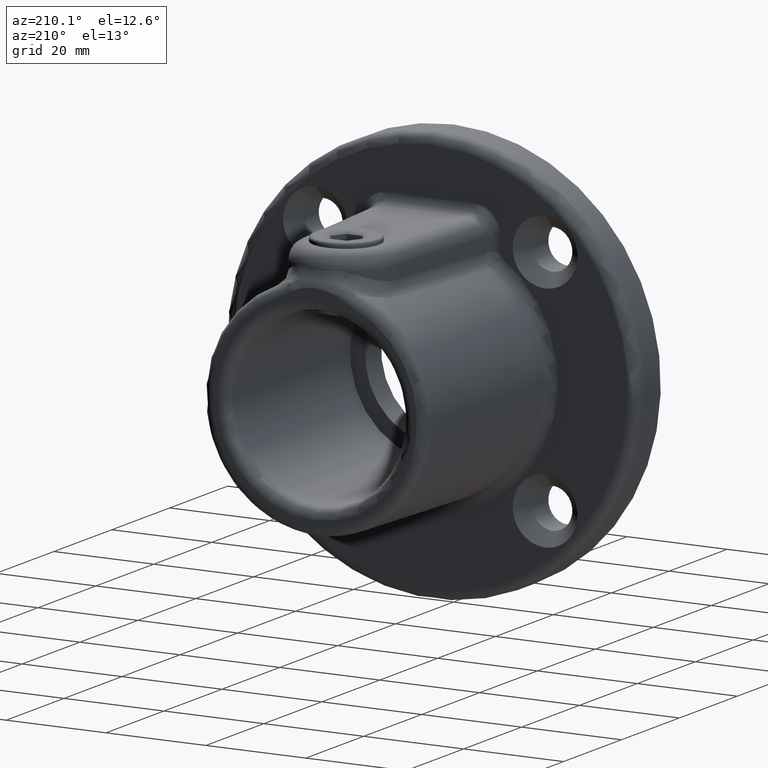
[diagram: clean part render]
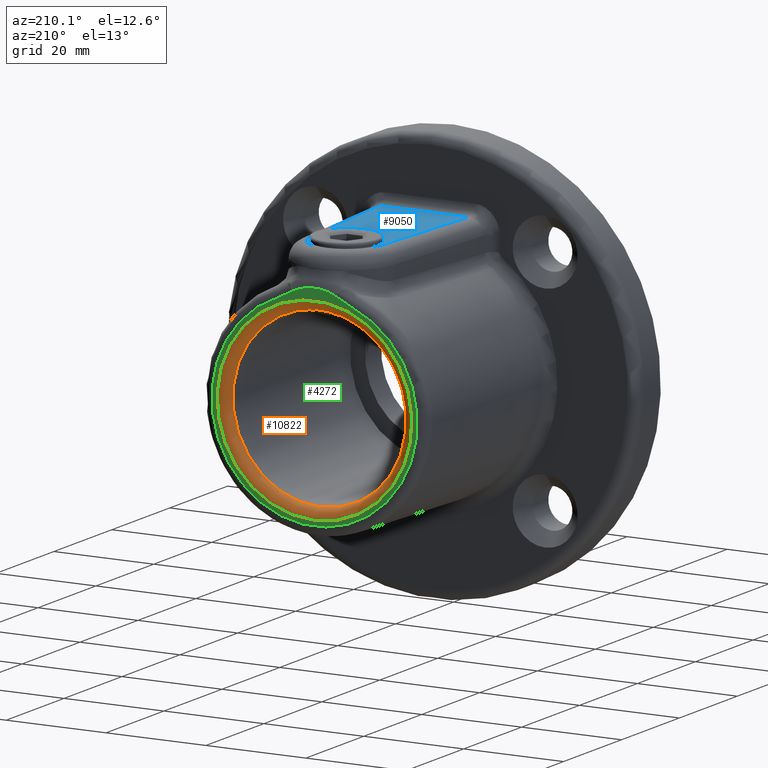
[diagram: same view with three faces highlighted in distinct colors, each labeled with its STEP entity id]
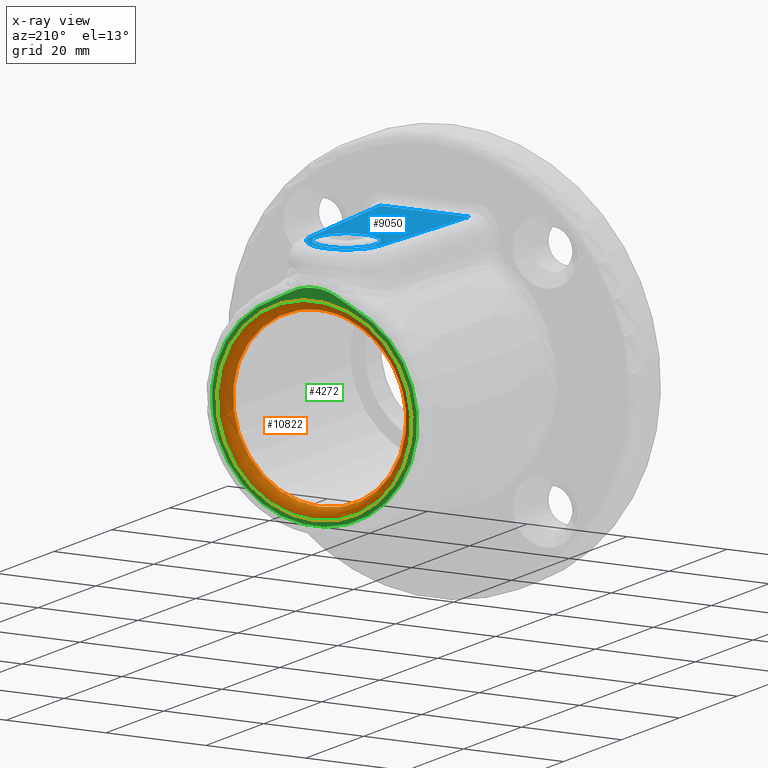
[diagram: x-ray of the same camera — body ghosted, the three highlighted faces saturated]
A machine part, auxiliary view with three faces highlighted in distinct colors.
The next image is the same camera in x-ray (body ghosted, the three faces saturated) — at least one of them is partly hidden behind the body in this view.
Their STEP definitions:

[orange] entity #10822 — the highlighted toroidal blend (fillet) surface has major radius 19.5 mm and minor (blend) radius 2 mm.
#676 = DIRECTION ( 'NONE',  ( 0.000000000000000000, -1.000000000000000000, 0.000000000000000000 ) ) ;
#1574 = FACE_OUTER_BOUND ( 'NONE', #5714, .T. ) ;
#2437 = DIRECTION ( 'NONE',  ( 0.000000000000000000, 0.000000000000000000, -1.000000000000000000 ) ) ;
#2889 = AXIS2_PLACEMENT_3D ( 'NONE', #9042, #6979, #2437 ) ;
#4879 = AXIS2_PLACEMENT_3D ( 'NONE', #9769, #13100, #13190 ) ;
#5714 = EDGE_LOOP ( 'NONE', ( #9508 ) ) ;
#6821 = AXIS2_PLACEMENT_3D ( 'NONE', #11542, #676, #12580 ) ;
#6979 = DIRECTION ( 'NONE',  ( 0.000000000000000000, -1.000000000000000000, 0.000000000000000000 ) ) ;
#8783 = FACE_OUTER_BOUND ( 'NONE', #9926, .T. ) ;
#9042 = CARTESIAN_POINT ( 'NONE',  ( 0.000000000000000000, 48.00000000000000000, 0.000000000000000000 ) ) ;
#9508 = ORIENTED_EDGE ( 'NONE', *, *, #11042, .F. ) ;
#9642 = ORIENTED_EDGE ( 'NONE', *, *, #10666, .F. ) ;
#9769 = CARTESIAN_POINT ( 'NONE',  ( 0.000000000000000000, 46.00000000000000000, 0.000000000000000000 ) ) ;
#9926 = EDGE_LOOP ( 'NONE', ( #9642 ) ) ;
#10666 = EDGE_CURVE ( 'NONE', #10780, #10780, #12209, .T. ) ;
#10687 = TOROIDAL_SURFACE ( 'NONE', #6821, 19.50000000000000355, 2.000000000000000000 ) ;
#10780 = VERTEX_POINT ( 'NONE', #13183 ) ;
#10822 = ADVANCED_FACE ( 'NONE', ( #8783, #1574 ), #10687, .T. ) ;
#10956 = VERTEX_POINT ( 'NONE', #10959 ) ;
#10959 = CARTESIAN_POINT ( 'NONE',  ( 0.000000000000000000, 46.00000000000000000, -17.50000000000000355 ) ) ;
#11042 = EDGE_CURVE ( 'NONE', #10956, #10956, #12732, .T. ) ;
#11542 = CARTESIAN_POINT ( 'NONE',  ( 0.000000000000000000, 46.00000000000000000, 0.000000000000000000 ) ) ;
#12209 = CIRCLE ( 'NONE', #2889, 19.50000000000000355 ) ;
#12580 = DIRECTION ( 'NONE',  ( 0.000000000000000000, 0.000000000000000000, -1.000000000000000000 ) ) ;
#12732 = CIRCLE ( 'NONE', #4879, 17.50000000000000355 ) ;
#13100 = DIRECTION ( 'NONE',  ( -0.000000000000000000, 1.000000000000000000, -0.000000000000000000 ) ) ;
#13183 = CARTESIAN_POINT ( 'NONE',  ( 0.000000000000000000, 48.00000000000000000, -19.50000000000000355 ) ) ;
#13190 = DIRECTION ( 'NONE',  ( 0.000000000000000000, 0.000000000000000000, -1.000000000000000000 ) ) ;

[blue] entity #9050 — the highlighted planar face has unit normal (0, 0, 1).
#141 = DIRECTION ( 'NONE',  ( 0.000000000000000000, 0.000000000000000000, 1.000000000000000000 ) ) ;
#289 = CARTESIAN_POINT ( 'NONE',  ( 0.000000000000000000, 37.00000000000000000, 28.00000000000000000 ) ) ;
#519 = AXIS2_PLACEMENT_3D ( 'NONE', #9988, #12280, #7974 ) ;
#580 = LINE ( 'NONE', #2580, #8669 ) ;
#1118 = EDGE_CURVE ( 'NONE', #2076, #6257, #2572, .T. ) ;
#1337 = VERTEX_POINT ( 'NONE', #5221 ) ;
#1455 = EDGE_LOOP ( 'NONE', ( #6161, #6402, #12356, #6039 ) ) ;
#2076 = VERTEX_POINT ( 'NONE', #4020 ) ;
#2572 = LINE ( 'NONE', #12346, #13882 ) ;
#2580 = CARTESIAN_POINT ( 'NONE',  ( -6.983793665930224215, 37.47605255141940006, 28.00000000000000000 ) ) ;
#3085 = DIRECTION ( 'NONE',  ( 0.000000000000000000, 0.000000000000000000, 1.000000000000000000 ) ) ;
#3231 = VERTEX_POINT ( 'NONE', #8481 ) ;
#3522 = CARTESIAN_POINT ( 'NONE',  ( 6.983793665930222438, 37.47605255141940717, 28.00000000000000000 ) ) ;
#3763 = CARTESIAN_POINT ( 'NONE',  ( 8.993038310618123532, 10.00000000000000178, 28.00000000000000000 ) ) ;
#4020 = CARTESIAN_POINT ( 'NONE',  ( 8.856707664499015920, 9.999999999999994671, 28.00000000000000000 ) ) ;
#4024 = CIRCLE ( 'NONE', #4404, 7.000000000000000000 ) ;
#4043 = CARTESIAN_POINT ( 'NONE',  ( 0.000000000000000000, 37.00000000000000000, 28.00000000000000000 ) ) ;
#4404 = AXIS2_PLACEMENT_3D ( 'NONE', #289, #141, #8047 ) ;
#4427 = AXIS2_PLACEMENT_3D ( 'NONE', #4043, #3085, #7304 ) ;
#4633 = EDGE_LOOP ( 'NONE', ( #6332 ) ) ;
#5221 = CARTESIAN_POINT ( 'NONE',  ( -8.856707664499015920, 9.999999999999998224, 28.00000000000000000 ) ) ;
#5242 = EDGE_CURVE ( 'NONE', #3231, #1337, #580, .T. ) ;
#6039 = ORIENTED_EDGE ( 'NONE', *, *, #7146, .T. ) ;
#6161 = ORIENTED_EDGE ( 'NONE', *, *, #5242, .T. ) ;
#6257 = VERTEX_POINT ( 'NONE', #3522 ) ;
#6329 = PLANE ( 'NONE',  #4427 ) ;
#6332 = ORIENTED_EDGE ( 'NONE', *, *, #6354, .F. ) ;
#6354 = EDGE_CURVE ( 'NONE', #12993, #12993, #7295, .T. ) ;
#6402 = ORIENTED_EDGE ( 'NONE', *, *, #7800, .T. ) ;
#7146 = EDGE_CURVE ( 'NONE', #6257, #3231, #4024, .T. ) ;
#7295 = CIRCLE ( 'NONE', #519, 5.899999999999996803 ) ;
#7304 = DIRECTION ( 'NONE',  ( 1.000000000000000000, 0.000000000000000000, -0.000000000000000000 ) ) ;
#7770 = FACE_OUTER_BOUND ( 'NONE', #1455, .T. ) ;
#7800 = EDGE_CURVE ( 'NONE', #1337, #2076, #11028, .T. ) ;
#7974 = DIRECTION ( 'NONE',  ( 1.000000000000000000, 0.000000000000000000, 0.000000000000000000 ) ) ;
#8047 = DIRECTION ( 'NONE',  ( 1.000000000000000000, 0.000000000000000000, 0.000000000000000000 ) ) ;
#8441 = DIRECTION ( 'NONE',  ( 1.000000000000000000, -0.000000000000000000, 0.000000000000000000 ) ) ;
#8481 = CARTESIAN_POINT ( 'NONE',  ( -6.983793665930220662, 37.47605255141940717, 28.00000000000000000 ) ) ;
#8609 = VECTOR ( 'NONE', #8441, 1000.000000000000000 ) ;
#8668 = DIRECTION ( 'NONE',  ( -0.06800750734562883981, -0.9976848094186029359, 0.000000000000000000 ) ) ;
#8669 = VECTOR ( 'NONE', #8668, 1000.000000000000114 ) ;
#9050 = ADVANCED_FACE ( 'NONE', ( #11380, #7770 ), #6329, .T. ) ;
#9988 = CARTESIAN_POINT ( 'NONE',  ( 0.000000000000000000, 37.00000000000000000, 28.00000000000000000 ) ) ;
#11028 = LINE ( 'NONE', #3763, #8609 ) ;
#11096 = CARTESIAN_POINT ( 'NONE',  ( 5.899999999999996803, 37.00000000000000000, 28.00000000000000000 ) ) ;
#11380 = FACE_BOUND ( 'NONE', #4633, .T. ) ;
#12280 = DIRECTION ( 'NONE',  ( -0.000000000000000000, -0.000000000000000000, 1.000000000000000000 ) ) ;
#12346 = CARTESIAN_POINT ( 'NONE',  ( 6.983793665930223327, 37.47605255141940006, 28.00000000000000000 ) ) ;
#12356 = ORIENTED_EDGE ( 'NONE', *, *, #1118, .T. ) ;
#12485 = DIRECTION ( 'NONE',  ( -0.06800750734562883981, 0.9976848094186029359, 0.000000000000000000 ) ) ;
#12993 = VERTEX_POINT ( 'NONE', #11096 ) ;
#13882 = VECTOR ( 'NONE', #12485, 1000.000000000000114 ) ;

[green] entity #4272 — the highlighted planar face has unit normal (0, -1, 0).
#162 = ORIENTED_EDGE ( 'NONE', *, *, #10666, .T. ) ;
#172 = CARTESIAN_POINT ( 'NONE',  ( 7.447734446586329327, 48.00000000000000000, 19.15223403459900808 ) ) ;
#327 = CARTESIAN_POINT ( 'NONE',  ( -1.949032956848002707, 47.99999999999999289, 21.56039318684762307 ) ) ;
#387 = CARTESIAN_POINT ( 'NONE',  ( 2.701648366931606926, 48.00000000000000711, 21.38701169326362006 ) ) ;
#424 = CARTESIAN_POINT ( 'NONE',  ( 3.076675991813426769, 47.99999999999999289, 21.27738383881821349 ) ) ;
#1291 = PLANE ( 'NONE',  #6408 ) ;
#1320 = CARTESIAN_POINT ( 'NONE',  ( 6.417647048478057670, 48.00000000000000000, 19.55280440064785807 ) ) ;
#2437 = DIRECTION ( 'NONE',  ( 0.000000000000000000, 0.000000000000000000, -1.000000000000000000 ) ) ;
#2533 = CARTESIAN_POINT ( 'NONE',  ( 4.165573398277962802, 48.00000000000000000, 20.84917052381728197 ) ) ;
#2638 = CARTESIAN_POINT ( 'NONE',  ( -5.457980180743417620, 48.00000000000000000, 20.09172904505748747 ) ) ;
#2673 = AXIS2_PLACEMENT_3D ( 'NONE', #10741, #11485, #12675 ) ;
#2889 = AXIS2_PLACEMENT_3D ( 'NONE', #9042, #6979, #2437 ) ;
#2927 = VERTEX_POINT ( 'NONE', #11712 ) ;
#3165 = EDGE_CURVE ( 'NONE', #11686, #2927, #6038, .T. ) ;
#3720 = FACE_OUTER_BOUND ( 'NONE', #4726, .T. ) ;
#3983 = B_SPLINE_CURVE_WITH_KNOTS ( 'NONE', 3,
 ( #8991, #12195, #1320, #172 ),
 .UNSPECIFIED., .F., .F.,
 ( 4, 4 ),
 ( 0.000000000000000000, 0.003299150938781723191 ),
 .UNSPECIFIED. ) ;
#4272 = ADVANCED_FACE ( 'NONE', ( #3720, #8337 ), #1291, .F. ) ;
#4678 = CARTESIAN_POINT ( 'NONE',  ( -7.447734446596732560, 48.00000000000000000, 19.15223403459496154 ) ) ;
#4726 = EDGE_LOOP ( 'NONE', ( #6325, #6955, #6377, #13449 ) ) ;
#4765 = CARTESIAN_POINT ( 'NONE',  ( 3.808350513363514711, 48.00000000000000711, 21.00767270512151796 ) ) ;
#4807 = CARTESIAN_POINT ( 'NONE',  ( -2.707184936555904198, 48.00000000000001421, 21.38534797522142838 ) ) ;
#5777 = CARTESIAN_POINT ( 'NONE',  ( -0.7806988045494179795, 48.00000000000000000, 21.71434424696088428 ) ) ;
#5920 = CARTESIAN_POINT ( 'NONE',  ( -3.079456638347541020, 48.00000000000000711, 21.27641959487581502 ) ) ;
#6038 = B_SPLINE_CURVE_WITH_KNOTS ( 'NONE', 3,
 ( #13740, #10338, #2638, #13594 ),
 .UNSPECIFIED., .F., .F.,
 ( 4, 4 ),
 ( 0.000000000000000000, 0.003299150938793340634 ),
 .UNSPECIFIED. ) ;
#6274 = CARTESIAN_POINT ( 'NONE',  ( 4.507529317198136987, 48.00000000000000000, 20.64876025020090822 ) ) ;
#6325 = ORIENTED_EDGE ( 'NONE', *, *, #10689, .T. ) ;
#6377 = ORIENTED_EDGE ( 'NONE', *, *, #7921, .T. ) ;
#6408 = AXIS2_PLACEMENT_3D ( 'NONE', #10108, #13704, #8008 ) ;
#6651 = VERTEX_POINT ( 'NONE', #8643 ) ;
#6723 = CIRCLE ( 'NONE', #2673, 20.54937509762574877 ) ;
#6834 = CARTESIAN_POINT ( 'NONE',  ( 1.935846539174888026, 48.00000000000000000, 21.56304276640285167 ) ) ;
#6877 = CARTESIAN_POINT ( 'NONE',  ( 1.547780343584472362, 48.00000000000000711, 21.62834194991101455 ) ) ;
#6955 = ORIENTED_EDGE ( 'NONE', *, *, #10556, .T. ) ;
#6979 = DIRECTION ( 'NONE',  ( 0.000000000000000000, -1.000000000000000000, 0.000000000000000000 ) ) ;
#7028 = CARTESIAN_POINT ( 'NONE',  ( 0.3859060791547559988, 48.00000000000000000, 21.73616777230032326 ) ) ;
#7921 = EDGE_CURVE ( 'NONE', #6651, #11686, #6723, .T. ) ;
#8008 = DIRECTION ( 'NONE',  ( 0.000000000000000000, -0.000000000000000000, -1.000000000000000000 ) ) ;
#8337 = FACE_BOUND ( 'NONE', #13523, .T. ) ;
#8643 = CARTESIAN_POINT ( 'NONE',  ( 7.447734446586329327, 48.00000000000000000, 19.15223403459900808 ) ) ;
#8991 = CARTESIAN_POINT ( 'NONE',  ( 4.507529317198136987, 48.00000000000000000, 20.64876025020090822 ) ) ;
#9042 = CARTESIAN_POINT ( 'NONE',  ( 0.000000000000000000, 48.00000000000000000, 0.000000000000000000 ) ) ;
#9141 = CARTESIAN_POINT ( 'NONE',  ( 4.507529317198136987, 48.00000000000000000, 20.64876025020090822 ) ) ;
#10108 = CARTESIAN_POINT ( 'NONE',  ( 0.000000000000000000, 48.00000000000000000, 0.000000000000000000 ) ) ;
#10338 = CARTESIAN_POINT ( 'NONE',  ( -6.417647048484235839, 48.00000000000000000, 19.55280440064397851 ) ) ;
#10556 = EDGE_CURVE ( 'NONE', #13107, #6651, #3983, .T. ) ;
#10666 = EDGE_CURVE ( 'NONE', #10780, #10780, #12209, .T. ) ;
#10689 = EDGE_CURVE ( 'NONE', #2927, #13107, #12069, .T. ) ;
#10741 = CARTESIAN_POINT ( 'NONE',  ( 0.000000000000000000, 48.00000000000000000, 0.000000000000000000 ) ) ;
#10780 = VERTEX_POINT ( 'NONE', #13183 ) ;
#11353 = CARTESIAN_POINT ( 'NONE',  ( -4.164531258012641679, 48.00000000000000000, 20.84978129147518189 ) ) ;
#11404 = CARTESIAN_POINT ( 'NONE',  ( -3.807861445190555916, 47.99999999999999289, 21.00779203201847878 ) ) ;
#11485 = DIRECTION ( 'NONE',  ( -0.000000000000000000, 1.000000000000000000, -0.000000000000000000 ) ) ;
#11686 = VERTEX_POINT ( 'NONE', #4678 ) ;
#11712 = CARTESIAN_POINT ( 'NONE',  ( -4.507529317197686680, 48.00000000000000000, 20.64876025020116046 ) ) ;
#12069 = B_SPLINE_CURVE_WITH_KNOTS ( 'NONE', 3,
 ( #12153, #11353, #11404, #5920, #4807, #327, #12477, #5777, #13377, #7028, #12342, #6877, #6834, #387, #424, #4765, #2533, #9141 ),
 .UNSPECIFIED., .F., .F.,
 ( 4, 2, 2, 2, 2, 2, 2, 2, 4 ),
 ( 0.000000000000000000, 0.001163331977520155837, 0.002326663955040311673, 0.003489995932560466425, 0.004653327910080620744, 0.005816659887600776797, 0.006979991865120931116, 0.008143323842641086302, 0.009306655820161239753 ),
 .UNSPECIFIED. ) ;
#12153 = CARTESIAN_POINT ( 'NONE',  ( -4.507529317197686680, 48.00000000000000000, 20.64876025020116046 ) ) ;
#12195 = CARTESIAN_POINT ( 'NONE',  ( 5.457980180740575449, 48.00000000000000000, 20.09172904505941659 ) ) ;
#12209 = CIRCLE ( 'NONE', #2889, 19.50000000000000355 ) ;
#12342 = CARTESIAN_POINT ( 'NONE',  ( 0.7737270968328995302, 47.99999999999999289, 21.71474016844579324 ) ) ;
#12477 = CARTESIAN_POINT ( 'NONE',  ( -1.561111173856481571, 48.00000000000000711, 21.62646166976599815 ) ) ;
#12675 = DIRECTION ( 'NONE',  ( 0.000000000000000000, 0.000000000000000000, -1.000000000000000000 ) ) ;
#13107 = VERTEX_POINT ( 'NONE', #6274 ) ;
#13183 = CARTESIAN_POINT ( 'NONE',  ( 0.000000000000000000, 48.00000000000000000, -19.50000000000000355 ) ) ;
#13377 = CARTESIAN_POINT ( 'NONE',  ( -0.3913069563615435564, 48.00000000000000000, 21.73596748680426671 ) ) ;
#13449 = ORIENTED_EDGE ( 'NONE', *, *, #3165, .T. ) ;
#13523 = EDGE_LOOP ( 'NONE', ( #162 ) ) ;
#13594 = CARTESIAN_POINT ( 'NONE',  ( -4.507529317197686680, 48.00000000000000000, 20.64876025020116046 ) ) ;
#13704 = DIRECTION ( 'NONE',  ( 0.000000000000000000, -1.000000000000000000, 0.000000000000000000 ) ) ;
#13740 = CARTESIAN_POINT ( 'NONE',  ( -7.447734446596732560, 48.00000000000000000, 19.15223403459496154 ) ) ;